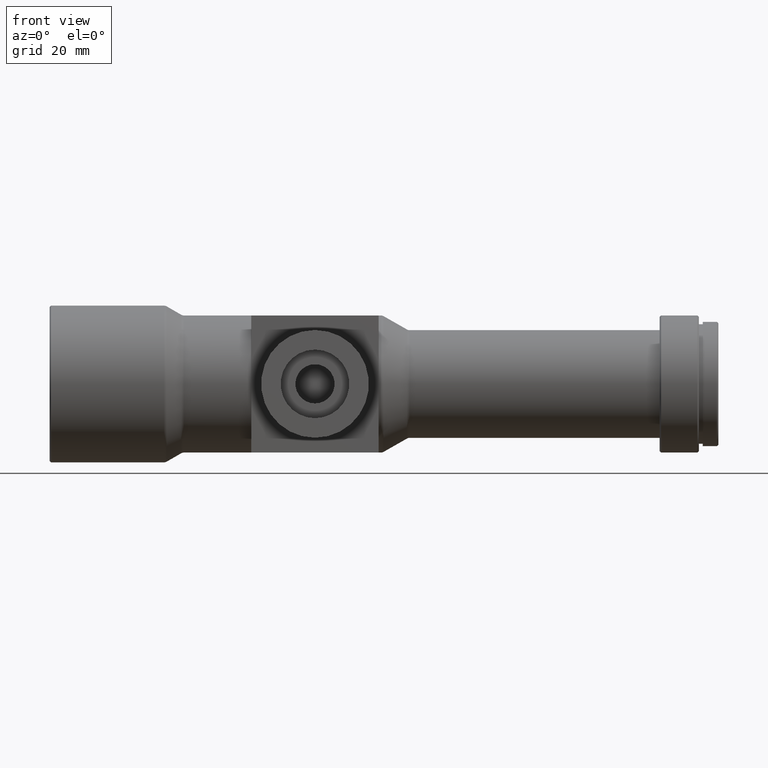
[diagram: clean part render]
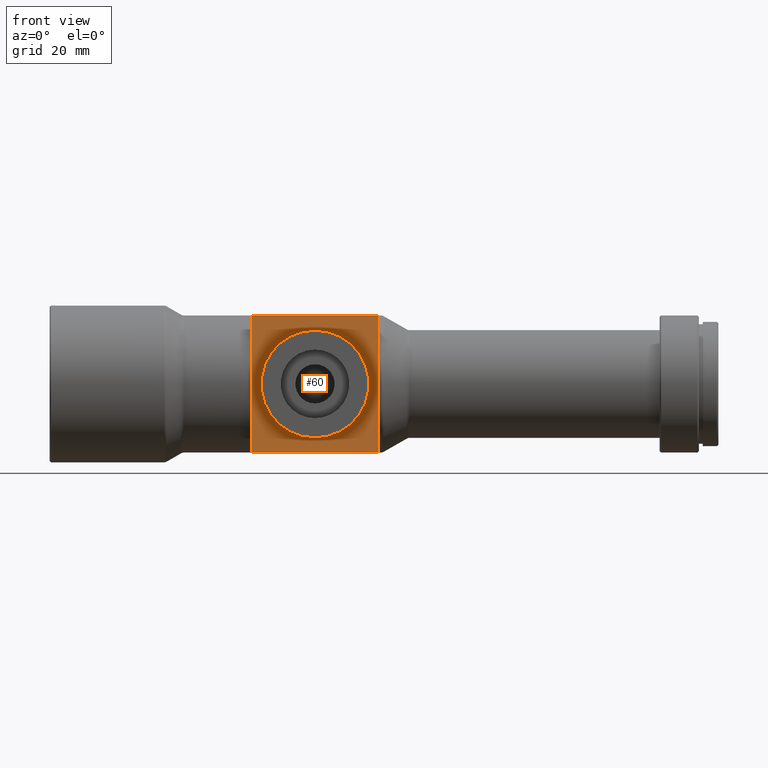
[diagram: same view with one face highlighted and labeled with its STEP entity id]
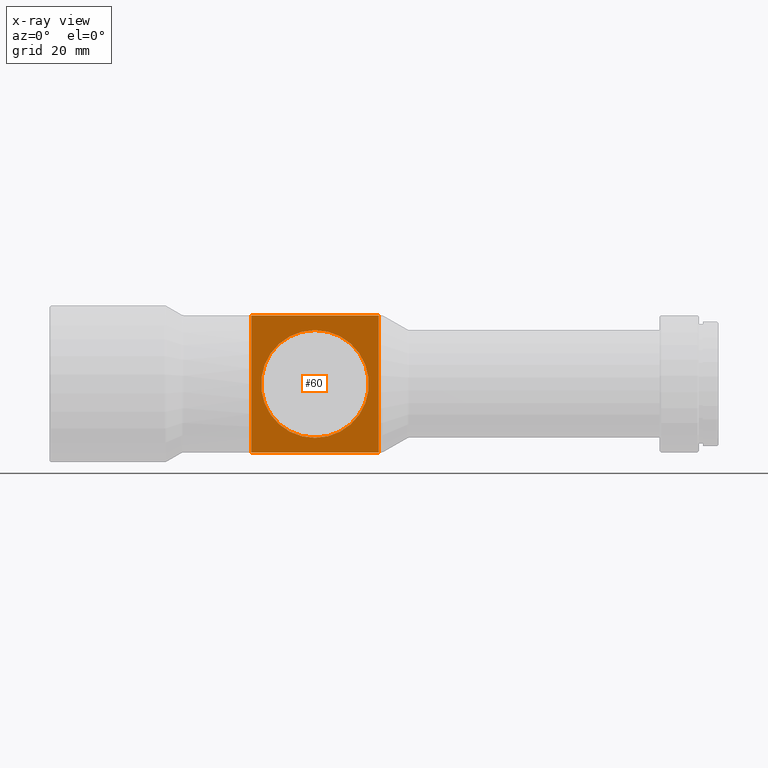
[diagram: x-ray of the same camera — body ghosted, the highlighted face saturated]
A machine part, front view. The second image highlights one B-rep face of the part: STEP entity #60.
The next image is the same camera in x-ray: the body ghosted, the highlighted face saturated — about 0% of this face is hidden behind the body in this view.
In plain terms, the highlighted planar face has unit normal (0, 1, 0).
Its self-contained STEP definition (entity closure, byte-faithful):
#10 = CARTESIAN_POINT ( 'NONE',  ( 41.20000000000001000, -14.00000000000000200, 14.00000000000000000 ) ) ;
#22 = CARTESIAN_POINT ( 'NONE',  ( 41.20000000000001000, -14.00000000000000200, -14.00000000000000000 ) ) ;
#48 = LINE ( 'NONE', #1189, #718 ) ;
#60 = ADVANCED_FACE ( 'NONE', ( #980, #510 ), #861, .F. ) ;
#61 = ORIENTED_EDGE ( 'NONE', *, *, #978, .F. ) ;
#66 = CIRCLE ( 'NONE', #1243, 10.99999999999999600 ) ;
#99 = LINE ( 'NONE', #1404, #1362 ) ;
#114 = CARTESIAN_POINT ( 'NONE',  ( 67.20000000000000300, -14.00000000000000200, 0.0000000000000000000 ) ) ;
#117 = EDGE_CURVE ( 'NONE', #229, #417, #120, .T. ) ;
#120 = LINE ( 'NONE', #560, #1264 ) ;
#128 = CARTESIAN_POINT ( 'NONE',  ( 41.20000000000001000, -14.00000000000000200, -14.00000000000000000 ) ) ;
#193 = DIRECTION ( 'NONE',  ( 0.0000000000000000000, 1.000000000000000000, 0.0000000000000000000 ) ) ;
#229 = VERTEX_POINT ( 'NONE', #475 ) ;
#235 = VERTEX_POINT ( 'NONE', #10 ) ;
#250 = CARTESIAN_POINT ( 'NONE',  ( 54.20000000000001000, -14.00000000000000200, -10.99999999999999600 ) ) ;
#251 = ORIENTED_EDGE ( 'NONE', *, *, #1439, .T. ) ;
#265 = DIRECTION ( 'NONE',  ( -0.0000000000000000000, -0.0000000000000000000, -1.000000000000000000 ) ) ;
#318 = CARTESIAN_POINT ( 'NONE',  ( 54.20000000000001000, -14.00000000000000200, 0.0000000000000000000 ) ) ;
#344 = LINE ( 'NONE', #128, #913 ) ;
#358 = ORIENTED_EDGE ( 'NONE', *, *, #937, .F. ) ;
#382 = VERTEX_POINT ( 'NONE', #250 ) ;
#417 = VERTEX_POINT ( 'NONE', #22 ) ;
#421 = DIRECTION ( 'NONE',  ( -0.0000000000000000000, 1.000000000000000000, -0.0000000000000000000 ) ) ;
#462 = DIRECTION ( 'NONE',  ( 1.000000000000000000, 0.0000000000000000000, 0.0000000000000000000 ) ) ;
#475 = CARTESIAN_POINT ( 'NONE',  ( 41.20000000000001000, -14.00000000000000200, 0.0000000000000000000 ) ) ;
#476 = CARTESIAN_POINT ( 'NONE',  ( 54.20000000000001000, -14.00000000000000200, 0.0000000000000000000 ) ) ;
#486 = DIRECTION ( 'NONE',  ( 1.000000000000000000, 0.0000000000000000000, 0.0000000000000000000 ) ) ;
#496 = CARTESIAN_POINT ( 'NONE',  ( 67.20000000000000300, -14.00000000000000200, 14.00000000000000000 ) ) ;
#510 = FACE_OUTER_BOUND ( 'NONE', #1391, .T. ) ;
#560 = CARTESIAN_POINT ( 'NONE',  ( 41.20000000000001000, -14.00000000000000200, 14.00000000000000000 ) ) ;
#563 = DIRECTION ( 'NONE',  ( -0.0000000000000000000, -0.0000000000000000000, -1.000000000000000000 ) ) ;
#593 = DIRECTION ( 'NONE',  ( -0.0000000000000000000, 1.000000000000000000, -0.0000000000000000000 ) ) ;
#625 = VECTOR ( 'NONE', #265, 1000.000000000000000 ) ;
#650 = CARTESIAN_POINT ( 'NONE',  ( 67.20000000000000300, -14.00000000000000200, -14.00000000000000000 ) ) ;
#661 = EDGE_CURVE ( 'NONE', #417, #1286, #344, .T. ) ;
#673 = ORIENTED_EDGE ( 'NONE', *, *, #661, .T. ) ;
#696 = VERTEX_POINT ( 'NONE', #1256 ) ;
#718 = VECTOR ( 'NONE', #1187, 1000.000000000000000 ) ;
#720 = CARTESIAN_POINT ( 'NONE',  ( 67.20000000000000300, -14.00000000000000200, 14.00000000000000000 ) ) ;
#731 = VERTEX_POINT ( 'NONE', #114 ) ;
#796 = AXIS2_PLACEMENT_3D ( 'NONE', #318, #421, #1211 ) ;
#823 = LINE ( 'NONE', #496, #625 ) ;
#861 = PLANE ( 'NONE',  #1293 ) ;
#886 = EDGE_LOOP ( 'NONE', ( #251, #1120 ) ) ;
#913 = VECTOR ( 'NONE', #462, 1000.000000000000000 ) ;
#934 = ORIENTED_EDGE ( 'NONE', *, *, #1317, .T. ) ;
#937 = EDGE_CURVE ( 'NONE', #731, #1286, #1070, .T. ) ;
#948 = EDGE_CURVE ( 'NONE', #235, #1430, #99, .T. ) ;
#959 = CARTESIAN_POINT ( 'NONE',  ( 41.20000000000001000, -14.00000000000000200, 14.00000000000000000 ) ) ;
#978 = EDGE_CURVE ( 'NONE', #1430, #731, #823, .T. ) ;
#980 = FACE_BOUND ( 'NONE', #886, .T. ) ;
#990 = EDGE_CURVE ( 'NONE', #382, #696, #66, .T. ) ;
#1029 = VECTOR ( 'NONE', #1169, 1000.000000000000000 ) ;
#1070 = LINE ( 'NONE', #720, #1029 ) ;
#1093 = DIRECTION ( 'NONE',  ( 0.0000000000000000000, -0.0000000000000000000, 1.000000000000000000 ) ) ;
#1100 = CARTESIAN_POINT ( 'NONE',  ( 67.20000000000000300, -14.00000000000000200, 14.00000000000000000 ) ) ;
#1120 = ORIENTED_EDGE ( 'NONE', *, *, #990, .T. ) ;
#1167 = DIRECTION ( 'NONE',  ( 0.0000000000000000000, 0.0000000000000000000, 1.000000000000000000 ) ) ;
#1169 = DIRECTION ( 'NONE',  ( -0.0000000000000000000, -0.0000000000000000000, -1.000000000000000000 ) ) ;
#1187 = DIRECTION ( 'NONE',  ( -0.0000000000000000000, -0.0000000000000000000, -1.000000000000000000 ) ) ;
#1189 = CARTESIAN_POINT ( 'NONE',  ( 41.20000000000001000, -14.00000000000000200, 14.00000000000000000 ) ) ;
#1211 = DIRECTION ( 'NONE',  ( 0.0000000000000000000, 0.0000000000000000000, 1.000000000000000000 ) ) ;
#1243 = AXIS2_PLACEMENT_3D ( 'NONE', #476, #593, #1167 ) ;
#1256 = CARTESIAN_POINT ( 'NONE',  ( 54.20000000000001000, -14.00000000000000200, 10.99999999999999600 ) ) ;
#1264 = VECTOR ( 'NONE', #563, 1000.000000000000000 ) ;
#1286 = VERTEX_POINT ( 'NONE', #650 ) ;
#1293 = AXIS2_PLACEMENT_3D ( 'NONE', #959, #193, #1093 ) ;
#1317 = EDGE_CURVE ( 'NONE', #235, #229, #48, .T. ) ;
#1359 = CIRCLE ( 'NONE', #796, 10.99999999999999600 ) ;
#1362 = VECTOR ( 'NONE', #486, 1000.000000000000000 ) ;
#1391 = EDGE_LOOP ( 'NONE', ( #358, #61, #1412, #934, #1465, #673 ) ) ;
#1404 = CARTESIAN_POINT ( 'NONE',  ( 41.20000000000001000, -14.00000000000000200, 14.00000000000000000 ) ) ;
#1412 = ORIENTED_EDGE ( 'NONE', *, *, #948, .F. ) ;
#1430 = VERTEX_POINT ( 'NONE', #1100 ) ;
#1439 = EDGE_CURVE ( 'NONE', #696, #382, #1359, .T. ) ;
#1465 = ORIENTED_EDGE ( 'NONE', *, *, #117, .T. ) ;